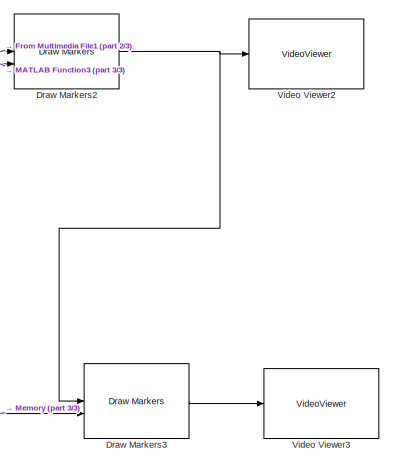
[diagram: root canvas - part 1/3, right side, full height]
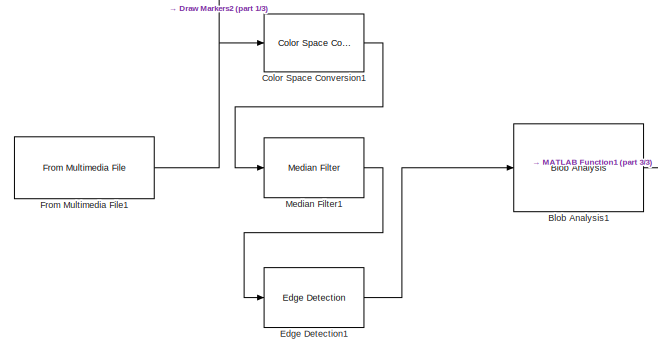
[diagram: root canvas - part 2/3, middle left region]
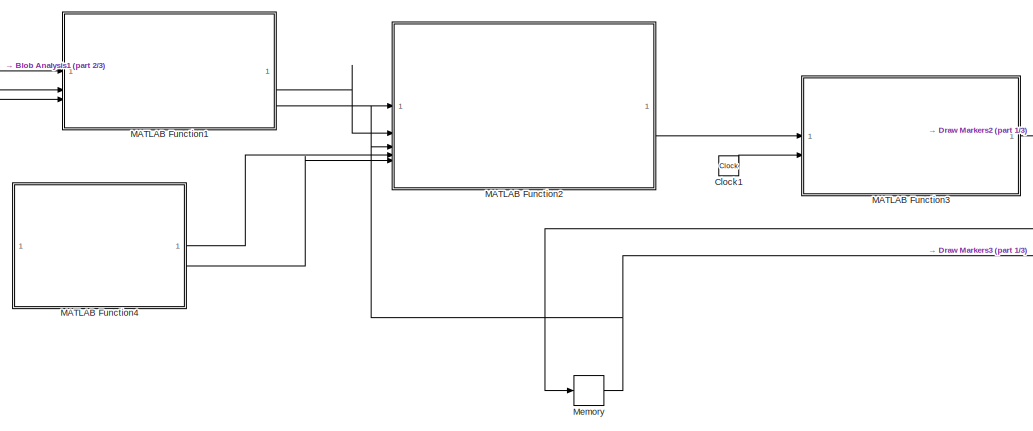
[diagram: root canvas - part 3/3, central region]
MODEL slx_2d74f8ab2811
KIND model
CONFIG AbsTol = auto
CONFIG EnableMultiTasking = off
CONFIG FixedStep = auto
CONFIG MaxStep = auto
CONFIG MinStep = auto
CONFIG RelTol = 1e-3
CONFIG SampleTimeConstraint = Unconstrained
CONFIG SolverName = VariableStepAuto
CONFIG StartTime = 0.0
CONFIG StopTime = 10.0
BLOCK [Reference] Blob Analysis1  REF=visionstatistics/Blob Analysis
  SourceBlock = visionstatistics/Blob Analysis
  SourceType = Blob Analysis
  Tag = vipblks_row_conv
BLOCK [Clock] Clock1
  DisplayTime = on
BLOCK [Reference] Color Space Conversion1  REF=visionconversions/Color Space
 Conversion
  SourceBlock = visionconversions/Color Space\n Conversion
  SourceType = Color Space Conversion
BLOCK [Reference] Draw Markers2  REF=visiontextngfix/Draw Markers
  SourceBlock = visiontextngfix/Draw Markers
  SourceType = Draw Markers
BLOCK [Reference] Draw Markers3  REF=visiontextngfix/Draw Markers
  SourceBlock = visiontextngfix/Draw Markers
  SourceType = Draw Markers
BLOCK [Reference] Edge Detection1  REF=visionanalysis/Edge Detection
  SourceBlock = visionanalysis/Edge Detection
  SourceType = Edge Detection
BLOCK [Reference] From Multimedia File1  REF=dspvision/From Multimedia File
  LibrarySourceBlock = visionsources/From Multimedia File
  SourceBlock = dspvision/From Multimedia File
  SourceType = From Multimedia File
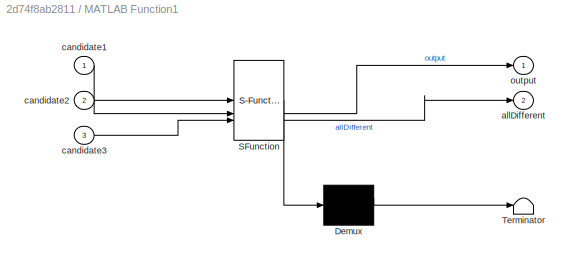
BLOCK [SubSystem] MATLAB Function1
  ErrorFcn = Stateflow.Translate.translate
  PermitHierarchicalResolution = ExplicitOnly
  SFBlockType = MATLAB Function
  TreatAsAtomicUnit = on
BLOCK [Demux] MATLAB Function1/ Demux 
  Outputs = 1
BLOCK [S-Function] MATLAB Function1/ SFunction 
  EnableBusSupport = on
  FunctionName = sf_sfun
  PortCounts = [3 3]
  SFcnIsStateOwnerBlock = off
  SFunctionDeploymentMode = off
  Tag = Stateflow S-Function 1
BLOCK [Terminator] MATLAB Function1/ Terminator 
BLOCK [Outport] MATLAB Function1/allDifferent
  Port = 2
BLOCK [Inport] MATLAB Function1/candidate1
BLOCK [Inport] MATLAB Function1/candidate2
  Port = 2
BLOCK [Inport] MATLAB Function1/candidate3
  Port = 3
BLOCK [Outport] MATLAB Function1/output
  VectorParamsAs1DForOutWhenUnconnected = off
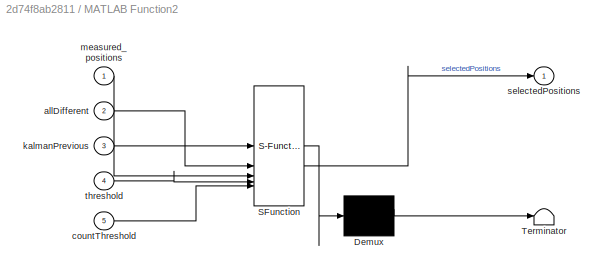
BLOCK [SubSystem] MATLAB Function2
  ErrorFcn = Stateflow.Translate.translate
  PermitHierarchicalResolution = ExplicitOnly
  SFBlockType = MATLAB Function
  TreatAsAtomicUnit = on
BLOCK [Demux] MATLAB Function2/ Demux 
  Outputs = 1
BLOCK [S-Function] MATLAB Function2/ SFunction 
  EnableBusSupport = on
  FunctionName = sf_sfun
  PortCounts = [5 2]
  SFcnIsStateOwnerBlock = off
  SFunctionDeploymentMode = off
  Tag = Stateflow S-Function 3
BLOCK [Terminator] MATLAB Function2/ Terminator 
BLOCK [Inport] MATLAB Function2/allDifferent
  Port = 2
BLOCK [Inport] MATLAB Function2/countThreshold
  Port = 5
BLOCK [Inport] MATLAB Function2/kalmanPrevious
  Port = 3
BLOCK [Inport] MATLAB Function2/measured_positions
BLOCK [Outport] MATLAB Function2/selectedPositions
BLOCK [Inport] MATLAB Function2/threshold
  Port = 4
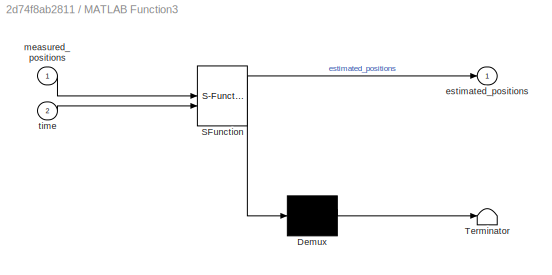
BLOCK [SubSystem] MATLAB Function3
  ErrorFcn = Stateflow.Translate.translate
  PermitHierarchicalResolution = ExplicitOnly
  SFBlockType = MATLAB Function
  TreatAsAtomicUnit = on
BLOCK [Demux] MATLAB Function3/ Demux 
  Outputs = 1
BLOCK [S-Function] MATLAB Function3/ SFunction 
  EnableBusSupport = on
  FunctionName = sf_sfun
  PortCounts = [2 2]
  SFcnIsStateOwnerBlock = off
  SFunctionDeploymentMode = off
  Tag = Stateflow S-Function 4
BLOCK [Terminator] MATLAB Function3/ Terminator 
BLOCK [Outport] MATLAB Function3/estimated_positions
BLOCK [Inport] MATLAB Function3/measured_positions
BLOCK [Inport] MATLAB Function3/time
  Port = 2
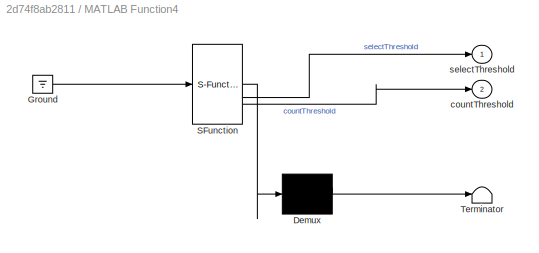
BLOCK [SubSystem] MATLAB Function4
  ErrorFcn = Stateflow.Translate.translate
  PermitHierarchicalResolution = ExplicitOnly
  SFBlockType = MATLAB Function
  TreatAsAtomicUnit = on
BLOCK [Demux] MATLAB Function4/ Demux 
  Outputs = 1
BLOCK [Ground] MATLAB Function4/ Ground 
BLOCK [S-Function] MATLAB Function4/ SFunction 
  EnableBusSupport = on
  FunctionName = sf_sfun
  PortCounts = [1 3]
  SFcnIsStateOwnerBlock = off
  SFunctionDeploymentMode = off
  Tag = Stateflow S-Function 5
BLOCK [Terminator] MATLAB Function4/ Terminator 
BLOCK [Outport] MATLAB Function4/countThreshold
  Port = 2
BLOCK [Outport] MATLAB Function4/selectThreshold
BLOCK [Reference] Median Filter1  REF=visionanalysis/Median Filter
  SourceBlock = visionanalysis/Median Filter
  SourceType = Median Filter
BLOCK [Memory] Memory
BLOCK [VideoViewer] Video Viewer2
  FigPos = [359.666666666667 1318.66666666667 1143.33333333333 642.666666666667]
  ScopeSpecificationString = vipscopes.VideoViewerScopeCfg('CurrentConfiguration', extmgr.ConfigurationSet(extmgr.Configuration('Core','General UI',true),extmgr.Configuration('Core','Source UI',true),extmgr.Configuration('Sources','WiredSimulink',true),extmgr.Configuration('Visuals','Video',true),extmgr.Configuration('Tools','Image Navigation Tools',true,'FitToView',true),extmgr.Configuration('Tools','Image Tool',true),extmgr...<+158ch>
  colormapValue = gray(256)
BLOCK [VideoViewer] Video Viewer3
  FigPos = [380.333333333333 959.333333333333 1124 700]
  ScopeSpecificationString = vipscopes.VideoViewerScopeCfg('CurrentConfiguration', extmgr.ConfigurationSet(extmgr.Configuration('Core','General UI',true),extmgr.Configuration('Core','Source UI',true),extmgr.Configuration('Sources','WiredSimulink',true),extmgr.Configuration('Visuals','Video',true),extmgr.Configuration('Tools','Image Navigation Tools',true,'FitToView',true,'Magnification',0.209),extmgr.Configuration('Tools','Im...<+167ch>
  colormapValue = gray(256)
NET Blob Analysis1:1 -> MATLAB Function1:1, MATLAB Function1:2, MATLAB Function1:3
LINE Clock1:1 -> MATLAB Function3:2
LINE Color Space Conversion1:1 -> Median Filter1:1
NET Draw Markers2:1 -> Draw Markers3:1, Video Viewer2:1
LINE Draw Markers3:1 -> Video Viewer3:1
LINE Edge Detection1:1 -> Blob Analysis1:1
NET From Multimedia File1:1 -> Color Space Conversion1:1, Draw Markers2:1
LINE MATLAB Function1:1 -> MATLAB Function2:1
LINE MATLAB Function1:2 -> MATLAB Function2:2
LINE MATLAB Function2:1 -> MATLAB Function3:1
NET MATLAB Function3:1 -> Draw Markers2:2, Memory:1
LINE MATLAB Function4:1 -> MATLAB Function2:4
LINE MATLAB Function4:2 -> MATLAB Function2:5
LINE Median Filter1:1 -> Edge Detection1:1
NET Memory:1 -> Draw Markers3:2, MATLAB Function2:3
note: NET lines group one-source signal fan-out (src -> all destinations, sorted); 1:1 wires keep LINE
CHART MATLAB Function1 states=1 transitions=1
  STATE_LABEL 'eML_blk_kernel()'
  STATE_LABEL 'SCRIPT:\nfunction [output, allDifferent] = voter(candidate1, candidate2, candidate3)\n    % Suppose input are M*2 matrix\n    % initialize output\n    [numBlobs, ~] = size(candidate1); % get nums of blobs\n    output = zeros(numBlobs, 2); % init output matrix\n    allDifferent = true(numBlobs, 1); % init alldifferent flag to 1\n    threshold = 10; % set threshold\n\n    for i = 1:numBlobs\n        % compare...<+713ch>'
CHART MATLAB Function2 states=1 transitions=1
  STATE_LABEL 'eML_blk_kernel()'
  STATE_LABEL 'SCRIPT:\nfunction selectedPositions = selectEstimates(measured_positions, allDifferent, kalmanPrevious, threshold, countThreshold)\n    persistent deviationCount;\n    persistent initCount; % save different count\n    [num_objects, ~] = size(measured_positions); % get nums of blobs\n    \n    % init\n    if isempty(deviationCount)\n        deviationCount = zeros(num_objects, 1);\n    end\n\n    if isempty(in...<+1834ch>'
CHART MATLAB Function3 states=1 transitions=1
  STATE_LABEL 'eML_blk_kernel()'
  STATE_LABEL "SCRIPT:\nfunction estimated_positions = myKalmanFilter(measured_positions, time)\n    % Input: \n    % measured_positions: Nx2 matrix, each row is an object's measured x and y position\n    % Output: \n    % estimated_positions: Nx2 matrix, each row is an object's estimated x and y position\n    \n    persistent x_hat P_hat prev_time\n\n    [num_objects, num_dimensions] = size(measured_positions);\n    \n   ...<+1474ch>"
CHART MATLAB Function4 states=1 transitions=1
  STATE_LABEL 'eML_blk_kernel()'
  STATE_LABEL 'SCRIPT:\nfunction [selectThreshold, countThreshold] = setThreshold()\n    selectThreshold = 100;\n    countThreshold = 5;'
CHART  states=0 transitions=0
CHART  states=0 transitions=0
CHART  states=0 transitions=0
CHART  states=0 transitions=0
